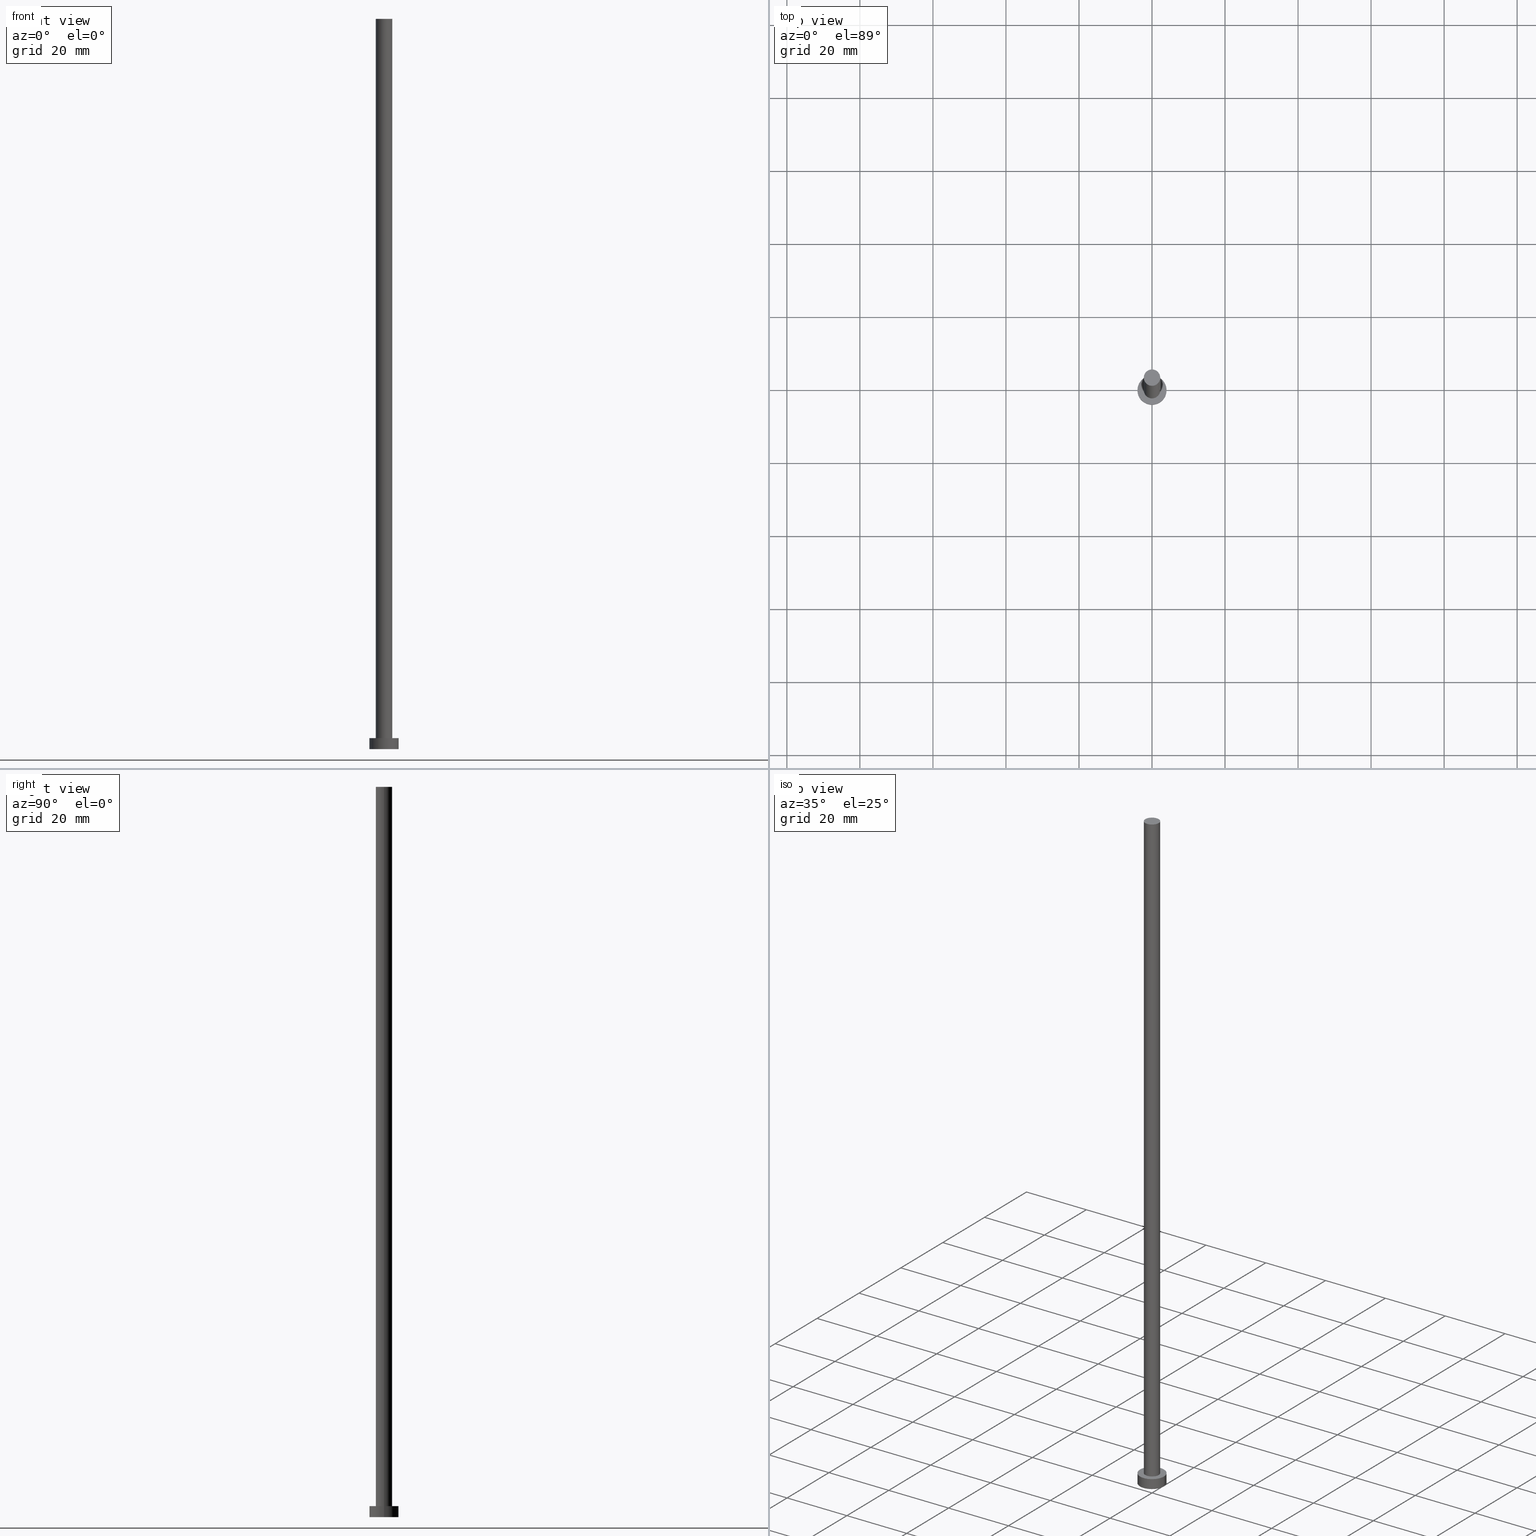
[diagram: canonical four-view strip — front | top / right | iso, engineering-drawing reading convention]
A machine part, canonical four-view strip (front | top / right | iso — engineering-drawing reading convention). The complete STEP part file that produces these views, byte-faithful:
ISO-10303-21;
HEADER;
FILE_DESCRIPTION (( 'STEP AP203' ),
    '1' );
FILE_NAME ('950e.STEP',
    '2023-02-12T12:33:38',
    ( '' ),
    ( '' ),
    'SwSTEP 2.0',
    'SolidWorks 2019',
    '' );
FILE_SCHEMA (( 'CONFIG_CONTROL_DESIGN' ));
ENDSEC;

DATA;
#1 = PERSON_AND_ORGANIZATION ( #159, #223 ) ;
#2 = CARTESIAN_POINT ( 'NONE',  ( 0.000000000000000000, 0.000000000000000000, 0.000000000000000000 ) ) ;
#3 = CC_DESIGN_PERSON_AND_ORGANIZATION_ASSIGNMENT ( #213, #111, ( #230 ) ) ;
#4 = ADVANCED_FACE ( 'NONE', ( #77, #191 ), #178, .T. ) ;
#5 = VERTEX_POINT ( 'NONE', #140 ) ;
#6 = VERTEX_POINT ( 'NONE', #35 ) ;
#7 = AXIS2_PLACEMENT_3D ( 'NONE', #14, #10, #94 ) ;
#8 = COORDINATED_UNIVERSAL_TIME_OFFSET ( 1, 0, .AHEAD. ) ;
#9 = ADVANCED_BREP_SHAPE_REPRESENTATION ( '950e', ( #176, #95 ), #173 ) ;
#10 = DIRECTION ( 'NONE',  ( 0.000000000000000000, 0.000000000000000000, 1.000000000000000000 ) ) ;
#11 = DATE_AND_TIME ( #33, #189 ) ;
#12 = ADVANCED_FACE ( 'NONE', ( #97 ), #251, .T. ) ;
#13 = PERSON_AND_ORGANIZATION ( #159, #223 ) ;
#14 = CARTESIAN_POINT ( 'NONE',  ( 0.000000000000000000, 0.000000000000000000, 3.000000000000000000 ) ) ;
#15 = LINE ( 'NONE', #37, #211 ) ;
#16 = MECHANICAL_CONTEXT ( 'NONE', #19, 'mechanical' ) ;
#17 = PRODUCT_DEFINITION_FORMATION_WITH_SPECIFIED_SOURCE ( 'LIBOVOLN�', '', #149, .NOT_KNOWN. ) ;
#18 = FACE_OUTER_BOUND ( 'NONE', #92, .T. ) ;
#19 = APPLICATION_CONTEXT ( 'configuration controlled 3d designs of mechanical parts and assemblies' ) ;
#20 = EDGE_CURVE ( 'NONE', #30, #138, #115, .T. ) ;
#21 = DIRECTION ( 'NONE',  ( 0.000000000000000000, 0.000000000000000000, 1.000000000000000000 ) ) ;
#22 = AXIS2_PLACEMENT_3D ( 'NONE', #126, #83, #69 ) ;
#23 = CARTESIAN_POINT ( 'NONE',  ( -2.250000000000000000, 0.000000000000000000, 200.0000000000000000 ) ) ;
#24 = PRODUCT_DEFINITION ( 'NEZN�M�', '', #17, #206 ) ;
#25 = PLANE ( 'NONE',  #136 ) ;
#26 = DIRECTION ( 'NONE',  ( -0.000000000000000000, -0.000000000000000000, -1.000000000000000000 ) ) ;
#27 = UNCERTAINTY_MEASURE_WITH_UNIT (LENGTH_MEASURE( 1.000000000000000082E-05 ), #153, 'distance_accuracy_value', 'NONE');
#28 = VECTOR ( 'NONE', #26, 1000.000000000000000 ) ;
#29 = DIRECTION ( 'NONE',  ( 0.000000000000000000, 0.000000000000000000, 1.000000000000000000 ) ) ;
#30 = VERTEX_POINT ( 'NONE', #99 ) ;
#31 = CIRCLE ( 'NONE', #235, 2.250000000000000000 ) ;
#32 = ORIENTED_EDGE ( 'NONE', *, *, #246, .T. ) ;
#33 = CALENDAR_DATE ( 2023, 12, 2 ) ;
#34 = LOCAL_TIME ( 13, 33, 38.00000000000000000, #63 ) ;
#35 = CARTESIAN_POINT ( 'NONE',  ( 4.000000000000000000, 4.898587196589412829E-16, 3.000000000000000000 ) ) ;
#36 = DATE_TIME_ROLE ( 'classification_date' ) ;
#37 = CARTESIAN_POINT ( 'NONE',  ( -4.000000000000000000, 0.000000000000000000, 3.000000000000000000 ) ) ;
#38 = APPROVAL_ROLE ( '' ) ;
#39 = CC_DESIGN_PERSON_AND_ORGANIZATION_ASSIGNMENT ( #1, #170, ( #17 ) ) ;
#40 = APPROVAL_DATE_TIME ( #161, #81 ) ;
#41 = CIRCLE ( 'NONE', #183, 4.000000000000000000 ) ;
#42 = CARTESIAN_POINT ( 'NONE',  ( 0.000000000000000000, 0.000000000000000000, 0.000000000000000000 ) ) ;
#43 = DIRECTION ( 'NONE',  ( 0.000000000000000000, 0.000000000000000000, 1.000000000000000000 ) ) ;
#44 = APPROVAL_STATUS ( 'not_yet_approved' ) ;
#45 = LINE ( 'NONE', #122, #150 ) ;
#46 = CYLINDRICAL_SURFACE ( 'NONE', #220, 4.000000000000000000 ) ;
#47 = ORIENTED_EDGE ( 'NONE', *, *, #98, .F. ) ;
#48 = APPROVAL ( #44, 'NEUR�EN�' ) ;
#49 = CARTESIAN_POINT ( 'NONE',  ( 0.000000000000000000, 0.000000000000000000, 3.000000000000000000 ) ) ;
#50 = DIRECTION ( 'NONE',  ( 1.000000000000000000, 0.000000000000000000, 0.000000000000000000 ) ) ;
#51 = PERSON_AND_ORGANIZATION ( #159, #223 ) ;
#52 = EDGE_LOOP ( 'NONE', ( #73, #32 ) ) ;
#53 = ORIENTED_EDGE ( 'NONE', *, *, #71, .T. ) ;
#54 = APPROVAL_PERSON_ORGANIZATION ( #134, #81, #38 ) ;
#55 = APPROVAL_STATUS ( 'not_yet_approved' ) ;
#56 = CC_DESIGN_PERSON_AND_ORGANIZATION_ASSIGNMENT ( #165, #240, ( #17 ) ) ;
#57 = ORIENTED_EDGE ( 'NONE', *, *, #181, .F. ) ;
#58 = ORIENTED_EDGE ( 'NONE', *, *, #70, .F. ) ;
#59 = ADVANCED_FACE ( 'NONE', ( #101 ), #238, .T. ) ;
#60 = DIRECTION ( 'NONE',  ( -0.000000000000000000, -0.000000000000000000, -1.000000000000000000 ) ) ;
#61 = DIRECTION ( 'NONE',  ( 0.000000000000000000, 0.000000000000000000, 1.000000000000000000 ) ) ;
#62 = LOCAL_TIME ( 13, 33, 38.00000000000000000, #93 ) ;
#63 = COORDINATED_UNIVERSAL_TIME_OFFSET ( 1, 0, .AHEAD. ) ;
#64 = DATE_AND_TIME ( #163, #34 ) ;
#65 = FACE_OUTER_BOUND ( 'NONE', #175, .T. ) ;
#66 = DIRECTION ( 'NONE',  ( -1.000000000000000000, 0.000000000000000000, 0.000000000000000000 ) ) ;
#67 = CARTESIAN_POINT ( 'NONE',  ( 0.000000000000000000, 0.000000000000000000, 3.000000000000000000 ) ) ;
#68 = DIRECTION ( 'NONE',  ( -1.000000000000000000, 0.000000000000000000, 0.000000000000000000 ) ) ;
#69 = DIRECTION ( 'NONE',  ( 1.000000000000000000, 0.000000000000000000, -0.000000000000000000 ) ) ;
#70 = EDGE_CURVE ( 'NONE', #248, #5, #245, .T. ) ;
#71 = EDGE_CURVE ( 'NONE', #253, #138, #15, .T. ) ;
#72 = CC_DESIGN_PERSON_AND_ORGANIZATION_ASSIGNMENT ( #195, #141, ( #149 ) ) ;
#73 = ORIENTED_EDGE ( 'NONE', *, *, #114, .T. ) ;
#74 = AXIS2_PLACEMENT_3D ( 'NONE', #104, #184, #225 ) ;
#75 = ORIENTED_EDGE ( 'NONE', *, *, #208, .T. ) ;
#76 = VERTEX_POINT ( 'NONE', #23 ) ;
#77 = FACE_BOUND ( 'NONE', #232, .T. ) ;
#78 = CARTESIAN_POINT ( 'NONE',  ( 0.000000000000000000, 0.000000000000000000, 0.000000000000000000 ) ) ;
#79 = DIRECTION ( 'NONE',  ( -0.000000000000000000, -0.000000000000000000, -1.000000000000000000 ) ) ;
#80 = APPROVAL_PERSON_ORGANIZATION ( #13, #48, #177 ) ;
#81 = APPROVAL ( #55, 'NEUR�EN�' ) ;
#82 = ORIENTED_EDGE ( 'NONE', *, *, #131, .F. ) ;
#83 = DIRECTION ( 'NONE',  ( 0.000000000000000000, 0.000000000000000000, 1.000000000000000000 ) ) ;
#84 = AXIS2_PLACEMENT_3D ( 'NONE', #210, #29, #90 ) ;
#85 = DIRECTION ( 'NONE',  ( 1.000000000000000000, 0.000000000000000000, -0.000000000000000000 ) ) ;
#86 = ADVANCED_FACE ( 'NONE', ( #65 ), #143, .T. ) ;
#87 = AXIS2_PLACEMENT_3D ( 'NONE', #120, #144, #66 ) ;
#88 = VECTOR ( 'NONE', #243, 1000.000000000000000 ) ;
#89 = COORDINATED_UNIVERSAL_TIME_OFFSET ( 1, 0, .AHEAD. ) ;
#90 = DIRECTION ( 'NONE',  ( 1.000000000000000000, 0.000000000000000000, 0.000000000000000000 ) ) ;
#91 = CALENDAR_DATE ( 2023, 12, 2 ) ;
#92 = EDGE_LOOP ( 'NONE', ( #179, #75, #188, #156 ) ) ;
#93 = COORDINATED_UNIVERSAL_TIME_OFFSET ( 1, 0, .AHEAD. ) ;
#94 = DIRECTION ( 'NONE',  ( 1.000000000000000000, 0.000000000000000000, -0.000000000000000000 ) ) ;
#95 = AXIS2_PLACEMENT_3D ( 'NONE', #78, #139, #216 ) ;
#96 = EDGE_LOOP ( 'NONE', ( #47, #82, #205, #209 ) ) ;
#97 = FACE_OUTER_BOUND ( 'NONE', #96, .T. ) ;
#98 = EDGE_CURVE ( 'NONE', #103, #248, #45, .T. ) ;
#99 = CARTESIAN_POINT ( 'NONE',  ( 4.000000000000000000, 4.898587196589412829E-16, 0.000000000000000000 ) ) ;
#100 = AXIS2_PLACEMENT_3D ( 'NONE', #67, #132, #142 ) ;
#101 = FACE_OUTER_BOUND ( 'NONE', #152, .T. ) ;
#102 = CARTESIAN_POINT ( 'NONE',  ( 0.000000000000000000, 0.000000000000000000, 3.000000000000000000 ) ) ;
#103 = VERTEX_POINT ( 'NONE', #202 ) ;
#104 = CARTESIAN_POINT ( 'NONE',  ( 0.000000000000000000, 0.000000000000000000, 200.0000000000000000 ) ) ;
#105 = CARTESIAN_POINT ( 'NONE',  ( -2.250000000000000000, 0.000000000000000000, 200.0000000000000000 ) ) ;
#106 = PRODUCT_DEFINITION_SHAPE ( 'NONE', 'NONE',  #24 ) ;
#107 = ADVANCED_FACE ( 'NONE', ( #18 ), #197, .T. ) ;
#108 = LOCAL_TIME ( 13, 33, 38.00000000000000000, #89 ) ;
#109 = ORIENTED_EDGE ( 'NONE', *, *, #20, .F. ) ;
#110 = AXIS2_PLACEMENT_3D ( 'NONE', #157, #60, #162 ) ;
#111 = PERSON_AND_ORGANIZATION_ROLE ( 'classification_officer' ) ;
#112 = CARTESIAN_POINT ( 'NONE',  ( 2.250000000000000000, 2.755455298081544285E-16, 3.000000000000000000 ) ) ;
#113 = AXIS2_PLACEMENT_3D ( 'NONE', #237, #130, #50 ) ;
#114 = EDGE_CURVE ( 'NONE', #253, #6, #41, .T. ) ;
#115 = CIRCLE ( 'NONE', #249, 4.000000000000000000 ) ;
#116 = CC_DESIGN_SECURITY_CLASSIFICATION ( #230, ( #17 ) ) ;
#117 = PERSON_AND_ORGANIZATION ( #159, #223 ) ;
#118 =( NAMED_UNIT ( * ) PLANE_ANGLE_UNIT ( ) SI_UNIT ( $, .RADIAN. ) );
#119 = AXIS2_PLACEMENT_3D ( 'NONE', #102, #226, #68 ) ;
#120 = CARTESIAN_POINT ( 'NONE',  ( 0.000000000000000000, 0.000000000000000000, 200.0000000000000000 ) ) ;
#121 = APPROVAL_DATE_TIME ( #64, #48 ) ;
#122 = CARTESIAN_POINT ( 'NONE',  ( 2.250000000000000000, 2.755455298081544285E-16, 200.0000000000000000 ) ) ;
#123 = DIRECTION ( 'NONE',  ( -1.000000000000000000, 0.000000000000000000, 0.000000000000000000 ) ) ;
#124 = CARTESIAN_POINT ( 'NONE',  ( 0.000000000000000000, 0.000000000000000000, 3.000000000000000000 ) ) ;
#125 = CARTESIAN_POINT ( 'NONE',  ( -4.000000000000000000, 0.000000000000000000, 0.000000000000000000 ) ) ;
#126 = CARTESIAN_POINT ( 'NONE',  ( 0.000000000000000000, 0.000000000000000000, 200.0000000000000000 ) ) ;
#127 = SHAPE_DEFINITION_REPRESENTATION ( #106, #9 ) ;
#128 = DIRECTION ( 'NONE',  ( 1.000000000000000000, 0.000000000000000000, 0.000000000000000000 ) ) ;
#129 = ADVANCED_FACE ( 'NONE', ( #222 ), #46, .T. ) ;
#130 = DIRECTION ( 'NONE',  ( 0.000000000000000000, 0.000000000000000000, 1.000000000000000000 ) ) ;
#131 = EDGE_CURVE ( 'NONE', #76, #103, #31, .T. ) ;
#132 = DIRECTION ( 'NONE',  ( 0.000000000000000000, 0.000000000000000000, 1.000000000000000000 ) ) ;
#133 = CC_DESIGN_DATE_AND_TIME_ASSIGNMENT ( #154, #228, ( #24 ) ) ;
#134 = PERSON_AND_ORGANIZATION ( #159, #223 ) ;
#135 = ORIENTED_EDGE ( 'NONE', *, *, #185, .F. ) ;
#136 = AXIS2_PLACEMENT_3D ( 'NONE', #2, #43, #85 ) ;
#137 = DIRECTION ( 'NONE',  ( 1.000000000000000000, 0.000000000000000000, 0.000000000000000000 ) ) ;
#138 = VERTEX_POINT ( 'NONE', #125 ) ;
#139 = DIRECTION ( 'NONE',  ( 0.000000000000000000, 0.000000000000000000, 1.000000000000000000 ) ) ;
#140 = CARTESIAN_POINT ( 'NONE',  ( -2.250000000000000000, 0.000000000000000000, 3.000000000000000000 ) ) ;
#141 = PERSON_AND_ORGANIZATION_ROLE ( 'design_owner' ) ;
#142 = DIRECTION ( 'NONE',  ( 1.000000000000000000, 0.000000000000000000, 0.000000000000000000 ) ) ;
#143 = PLANE ( 'NONE',  #22 ) ;
#144 = DIRECTION ( 'NONE',  ( -0.000000000000000000, -0.000000000000000000, -1.000000000000000000 ) ) ;
#145 = DIRECTION ( 'NONE',  ( 0.000000000000000000, 0.000000000000000000, 1.000000000000000000 ) ) ;
#146 = CC_DESIGN_PERSON_AND_ORGANIZATION_ASSIGNMENT ( #51, #204, ( #24 ) ) ;
#147 = DIRECTION ( 'NONE',  ( -0.000000000000000000, -0.000000000000000000, -1.000000000000000000 ) ) ;
#148 = LINE ( 'NONE', #171, #88 ) ;
#149 = PRODUCT ( '950e', '950e', '', ( #16 ) ) ;
#150 = VECTOR ( 'NONE', #147, 1000.000000000000000 ) ;
#151 = APPROVAL_DATE_TIME ( #247, #214 ) ;
#152 = EDGE_LOOP ( 'NONE', ( #182, #155, #224, #57 ) ) ;
#153 =( LENGTH_UNIT ( ) NAMED_UNIT ( * ) SI_UNIT ( .MILLI., .METRE. ) );
#154 = DATE_AND_TIME ( #244, #108 ) ;
#155 = ORIENTED_EDGE ( 'NONE', *, *, #98, .T. ) ;
#156 = ORIENTED_EDGE ( 'NONE', *, *, #71, .F. ) ;
#157 = CARTESIAN_POINT ( 'NONE',  ( 0.000000000000000000, 0.000000000000000000, 200.0000000000000000 ) ) ;
#158 = PRODUCT_RELATED_PRODUCT_CATEGORY ( 'detail', '', ( #149 ) ) ;
#159 = PERSON ( 'NEUR�EN�', 'NEUR�EN�', 'NEUR�EN�', ('NEUR�EN�'), ('NEUR�EN�'), ('NEUR�EN�') ) ;
#160 = CARTESIAN_POINT ( 'NONE',  ( -4.000000000000000000, 0.000000000000000000, 3.000000000000000000 ) ) ;
#161 = DATE_AND_TIME ( #190, #199 ) ;
#162 = DIRECTION ( 'NONE',  ( -1.000000000000000000, 0.000000000000000000, 0.000000000000000000 ) ) ;
#163 = CALENDAR_DATE ( 2023, 12, 2 ) ;
#164 = CC_DESIGN_DATE_AND_TIME_ASSIGNMENT ( #11, #36, ( #230 ) ) ;
#165 = PERSON_AND_ORGANIZATION ( #159, #223 ) ;
#166 = ORIENTED_EDGE ( 'NONE', *, *, #186, .F. ) ;
#167 = SECURITY_CLASSIFICATION_LEVEL ( 'unclassified' ) ;
#168 = CIRCLE ( 'NONE', #84, 4.000000000000000000 ) ;
#169 = EDGE_CURVE ( 'NONE', #103, #76, #227, .T. ) ;
#170 = PERSON_AND_ORGANIZATION_ROLE ( 'creator' ) ;
#171 = CARTESIAN_POINT ( 'NONE',  ( 4.000000000000000000, 4.898587196589412829E-16, 3.000000000000000000 ) ) ;
#172 = ORIENTED_EDGE ( 'NONE', *, *, #185, .T. ) ;
#173 =( GEOMETRIC_REPRESENTATION_CONTEXT ( 3 ) GLOBAL_UNCERTAINTY_ASSIGNED_CONTEXT ( ( #27 ) ) GLOBAL_UNIT_ASSIGNED_CONTEXT ( ( #153, #118, #221 ) ) REPRESENTATION_CONTEXT ( 'NONE', 'WORKASPACE' ) );
#174 = APPLICATION_CONTEXT ( 'configuration controlled 3d designs of mechanical parts and assemblies' ) ;
#175 = EDGE_LOOP ( 'NONE', ( #255, #212 ) ) ;
#176 = MANIFOLD_SOLID_BREP ( 'P�idat vysunut�m3', #250 ) ;
#177 = APPROVAL_ROLE ( '' ) ;
#178 = PLANE ( 'NONE',  #7 ) ;
#179 = ORIENTED_EDGE ( 'NONE', *, *, #246, .F. ) ;
#180 = APPROVAL_PERSON_ORGANIZATION ( #117, #214, #234 ) ;
#181 = EDGE_CURVE ( 'NONE', #76, #5, #241, .T. ) ;
#182 = ORIENTED_EDGE ( 'NONE', *, *, #169, .F. ) ;
#183 = AXIS2_PLACEMENT_3D ( 'NONE', #49, #145, #128 ) ;
#184 = DIRECTION ( 'NONE',  ( 0.000000000000000000, 0.000000000000000000, 1.000000000000000000 ) ) ;
#185 = EDGE_CURVE ( 'NONE', #138, #30, #207, .T. ) ;
#186 = EDGE_CURVE ( 'NONE', #5, #248, #193, .T. ) ;
#187 = EDGE_LOOP ( 'NONE', ( #135, #109 ) ) ;
#188 = ORIENTED_EDGE ( 'NONE', *, *, #20, .T. ) ;
#189 = LOCAL_TIME ( 13, 33, 38.00000000000000000, #8 ) ;
#190 = CALENDAR_DATE ( 2023, 12, 2 ) ;
#191 = FACE_OUTER_BOUND ( 'NONE', #52, .T. ) ;
#192 = DIRECTION ( 'NONE',  ( 0.000000000000000000, 0.000000000000000000, 1.000000000000000000 ) ) ;
#193 = CIRCLE ( 'NONE', #100, 2.250000000000000000 ) ;
#194 = COORDINATED_UNIVERSAL_TIME_OFFSET ( 1, 0, .AHEAD. ) ;
#195 = PERSON_AND_ORGANIZATION ( #159, #223 ) ;
#196 = DIRECTION ( 'NONE',  ( 1.000000000000000000, 0.000000000000000000, 0.000000000000000000 ) ) ;
#197 = CYLINDRICAL_SURFACE ( 'NONE', #119, 4.000000000000000000 ) ;
#198 = APPLICATION_PROTOCOL_DEFINITION ( 'international standard', 'config_control_design', 1994, #19 ) ;
#199 = LOCAL_TIME ( 13, 33, 38.00000000000000000, #194 ) ;
#200 = DIRECTION ( 'NONE',  ( -0.000000000000000000, -0.000000000000000000, -1.000000000000000000 ) ) ;
#201 = DIRECTION ( 'NONE',  ( 1.000000000000000000, 0.000000000000000000, 0.000000000000000000 ) ) ;
#202 = CARTESIAN_POINT ( 'NONE',  ( 2.250000000000000000, 2.755455298081544285E-16, 200.0000000000000000 ) ) ;
#203 = ADVANCED_FACE ( 'NONE', ( #219 ), #25, .F. ) ;
#204 = PERSON_AND_ORGANIZATION_ROLE ( 'creator' ) ;
#205 = ORIENTED_EDGE ( 'NONE', *, *, #181, .T. ) ;
#206 = DESIGN_CONTEXT ( 'detailed design', #174, 'design' ) ;
#207 = CIRCLE ( 'NONE', #113, 4.000000000000000000 ) ;
#208 = EDGE_CURVE ( 'NONE', #6, #30, #148, .T. ) ;
#209 = ORIENTED_EDGE ( 'NONE', *, *, #186, .T. ) ;
#210 = CARTESIAN_POINT ( 'NONE',  ( 0.000000000000000000, 0.000000000000000000, 3.000000000000000000 ) ) ;
#211 = VECTOR ( 'NONE', #79, 1000.000000000000000 ) ;
#212 = ORIENTED_EDGE ( 'NONE', *, *, #169, .T. ) ;
#213 = PERSON_AND_ORGANIZATION ( #159, #223 ) ;
#214 = APPROVAL ( #236, 'NEUR�EN�' ) ;
#215 = CARTESIAN_POINT ( 'NONE',  ( 0.000000000000000000, 0.000000000000000000, 3.000000000000000000 ) ) ;
#216 = DIRECTION ( 'NONE',  ( 1.000000000000000000, 0.000000000000000000, 0.000000000000000000 ) ) ;
#217 = CC_DESIGN_APPROVAL ( #81, ( #17 ) ) ;
#218 = APPLICATION_PROTOCOL_DEFINITION ( 'international standard', 'config_control_design', 1994, #174 ) ;
#219 = FACE_OUTER_BOUND ( 'NONE', #187, .T. ) ;
#220 = AXIS2_PLACEMENT_3D ( 'NONE', #124, #200, #123 ) ;
#221 =( NAMED_UNIT ( * ) SI_UNIT ( $, .STERADIAN. ) SOLID_ANGLE_UNIT ( ) );
#222 = FACE_OUTER_BOUND ( 'NONE', #242, .T. ) ;
#223 = ORGANIZATION ( 'NEUR�EN�', 'NEUR�EN�', '' ) ;
#224 = ORIENTED_EDGE ( 'NONE', *, *, #70, .T. ) ;
#225 = DIRECTION ( 'NONE',  ( 1.000000000000000000, 0.000000000000000000, 0.000000000000000000 ) ) ;
#226 = DIRECTION ( 'NONE',  ( -0.000000000000000000, -0.000000000000000000, -1.000000000000000000 ) ) ;
#227 = CIRCLE ( 'NONE', #74, 2.250000000000000000 ) ;
#228 = DATE_TIME_ROLE ( 'creation_date' ) ;
#229 = ORIENTED_EDGE ( 'NONE', *, *, #208, .F. ) ;
#230 = SECURITY_CLASSIFICATION ( '', '', #167 ) ;
#231 = ORIENTED_EDGE ( 'NONE', *, *, #114, .F. ) ;
#232 = EDGE_LOOP ( 'NONE', ( #166, #58 ) ) ;
#233 = CC_DESIGN_APPROVAL ( #214, ( #24 ) ) ;
#234 = APPROVAL_ROLE ( '' ) ;
#235 = AXIS2_PLACEMENT_3D ( 'NONE', #239, #21, #201 ) ;
#236 = APPROVAL_STATUS ( 'not_yet_approved' ) ;
#237 = CARTESIAN_POINT ( 'NONE',  ( 0.000000000000000000, 0.000000000000000000, 0.000000000000000000 ) ) ;
#238 = CYLINDRICAL_SURFACE ( 'NONE', #87, 2.250000000000000000 ) ;
#239 = CARTESIAN_POINT ( 'NONE',  ( 0.000000000000000000, 0.000000000000000000, 200.0000000000000000 ) ) ;
#240 = PERSON_AND_ORGANIZATION_ROLE ( 'design_supplier' ) ;
#241 = LINE ( 'NONE', #105, #28 ) ;
#242 = EDGE_LOOP ( 'NONE', ( #229, #231, #53, #172 ) ) ;
#243 = DIRECTION ( 'NONE',  ( -0.000000000000000000, -0.000000000000000000, -1.000000000000000000 ) ) ;
#244 = CALENDAR_DATE ( 2023, 12, 2 ) ;
#245 = CIRCLE ( 'NONE', #254, 2.250000000000000000 ) ;
#246 = EDGE_CURVE ( 'NONE', #6, #253, #168, .T. ) ;
#247 = DATE_AND_TIME ( #91, #62 ) ;
#248 = VERTEX_POINT ( 'NONE', #112 ) ;
#249 = AXIS2_PLACEMENT_3D ( 'NONE', #42, #192, #196 ) ;
#250 = CLOSED_SHELL ( 'NONE', ( #59, #107, #129, #4, #203, #12, #86 ) ) ;
#251 = CYLINDRICAL_SURFACE ( 'NONE', #110, 2.250000000000000000 ) ;
#252 = CC_DESIGN_APPROVAL ( #48, ( #230 ) ) ;
#253 = VERTEX_POINT ( 'NONE', #160 ) ;
#254 = AXIS2_PLACEMENT_3D ( 'NONE', #215, #61, #137 ) ;
#255 = ORIENTED_EDGE ( 'NONE', *, *, #131, .T. ) ;
ENDSEC;
END-ISO-10303-21;
